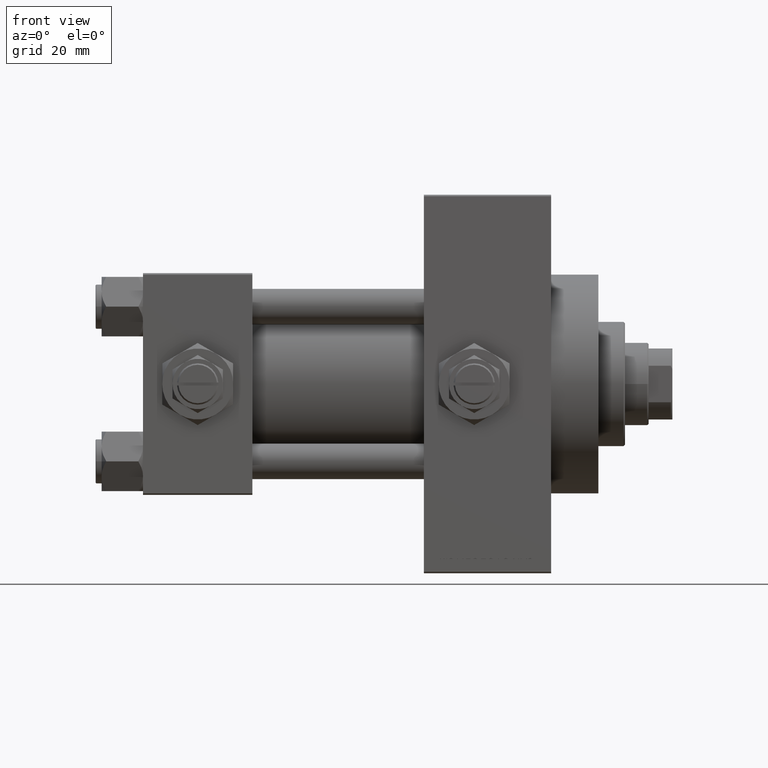
[diagram: clean part render]
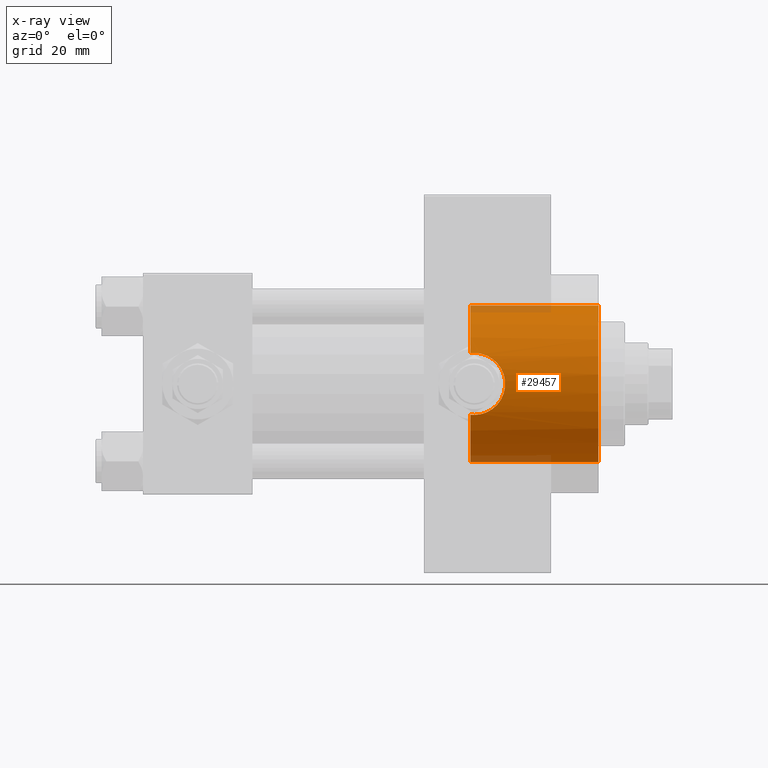
[diagram: x-ray — body ghosted, one internal face saturated and labeled with its STEP entity id]
A machine part, front view, then the same camera in x-ray: the body is ghosted and one INTERNAL B-rep face — a face not visible from any outside direction — is saturated and labeled: STEP entity #29457.
In plain terms, the highlighted cylindrical surface (partial cylindrical patch) has radius 26.5 mm, axis along (1, 0, 0).
Its self-contained STEP definition (entity closure, byte-faithful):
#143 = CARTESIAN_POINT ( 'NONE',  ( 122.4798633477534509, -26.49994595790488106, 0.6963870350870486892 ) ) ;
#269 = DIRECTION ( 'NONE',  ( 1.000000000000000000, -0.000000000000000000, -0.000000000000000000 ) ) ;
#394 = CARTESIAN_POINT ( 'NONE',  ( 115.3904700717597649, -24.57248644795726022, 9.922439993611771314 ) ) ;
#911 = DIRECTION ( 'NONE',  ( 0.000000000000000000, 0.000000000000000000, -1.000000000000000000 ) ) ;
#937 = B_SPLINE_CURVE_WITH_KNOTS ( 'NONE', 3,
 ( #40307, #32098, #2445, #28379 ),
 .UNSPECIFIED., .F., .F.,
 ( 4, 4 ),
 ( 0.03437190755806011910, 0.03561776921873218565 ),
 .UNSPECIFIED. ) ;
#1124 = CARTESIAN_POINT ( 'NONE',  ( 113.3786097457406044, -24.36915941385104745, -10.41231194222669387 ) ) ;
#1423 = AXIS2_PLACEMENT_3D ( 'NONE', #41955, #8835, #31244 ) ;
#2198 = CYLINDRICAL_SURFACE ( 'NONE', #45098, 26.50000000000000355 ) ;
#2273 = ORIENTED_EDGE ( 'NONE', *, *, #23823, .F. ) ;
#2445 = CARTESIAN_POINT ( 'NONE',  ( 111.1580741051582635, -24.35064928096444348, 10.45461191700782422 ) ) ;
#3768 = CARTESIAN_POINT ( 'NONE',  ( 110.7400000000000375, 0.000000000000000000, -26.50000000000000355 ) ) ;
#3889 = CARTESIAN_POINT ( 'NONE',  ( 117.2635990777562256, -24.90054338428140568, -9.068796382691635571 ) ) ;
#3926 = CARTESIAN_POINT ( 'NONE',  ( 110.7400000000000375, 0.000000000000000000, 0.000000000000000000 ) ) ;
#4134 = CARTESIAN_POINT ( 'NONE',  ( 121.8022638174866046, -26.23907308479208922, 3.723318718764354163 ) ) ;
#4387 = CARTESIAN_POINT ( 'NONE',  ( 122.1219222710722505, -26.36027543327034905, 2.738055544399104146 ) ) ;
#4631 = CARTESIAN_POINT ( 'NONE',  ( 120.8904987776702171, -25.91192981801191664, 5.559420023815757617 ) ) ;
#4632 = CIRCLE ( 'NONE', #1423, 26.50000000000000355 ) ;
#4873 = CARTESIAN_POINT ( 'NONE',  ( 114.3947302122627718, -24.45488967133337965, 10.20851256290626985 ) ) ;
#5613 = CIRCLE ( 'NONE', #28710, 26.50000000000000355 ) ;
#6427 = CARTESIAN_POINT ( 'NONE',  ( 110.7400000000000375, 0.000000000000000000, 0.000000000000000000 ) ) ;
#7950 = AXIS2_PLACEMENT_3D ( 'NONE', #31679, #35894, #39394 ) ;
#8089 = CARTESIAN_POINT ( 'NONE',  ( 111.1611364518797984, -24.35049096341792918, -10.45498279016081611 ) ) ;
#8135 = CARTESIAN_POINT ( 'NONE',  ( 113.3839948142214524, -24.36973996242157625, 10.41091756284553504 ) ) ;
#8388 = CARTESIAN_POINT ( 'NONE',  ( 118.4049404352972061, -25.16229795609818964, -8.322848467437539810 ) ) ;
#8786 = B_SPLINE_CURVE_WITH_KNOTS ( 'NONE', 3,
 ( #30744, #8089, #8826, #12061 ),
 .UNSPECIFIED., .F., .F.,
 ( 4, 4 ),
 ( 0.000000000000000000, 0.001255586767787659347 ),
 .UNSPECIFIED. ) ;
#8826 = CARTESIAN_POINT ( 'NONE',  ( 111.5811236364006049, -24.33967132070604222, -10.47999999999999865 ) ) ;
#8835 = DIRECTION ( 'NONE',  ( 1.000000000000000000, 0.000000000000000000, 0.000000000000000000 ) ) ;
#9539 = VERTEX_POINT ( 'NONE', #14431 ) ;
#10326 = CIRCLE ( 'NONE', #7950, 26.50000000000000355 ) ;
#10414 = FACE_OUTER_BOUND ( 'NONE', #40796, .T. ) ;
#11620 = CARTESIAN_POINT ( 'NONE',  ( 117.2636119660474066, -24.89625137302610369, 9.087734872939172703 ) ) ;
#11865 = CARTESIAN_POINT ( 'NONE',  ( 121.3916535229813576, -26.08830885934473542, 4.663043711798784408 ) ) ;
#12061 = CARTESIAN_POINT ( 'NONE',  ( 112.0000000000000000, -24.33967132070604222, -10.47999999999999865 ) ) ;
#12103 = CARTESIAN_POINT ( 'NONE',  ( 116.6659000583122605, -24.77500862834706652, 9.408993987884901600 ) ) ;
#12334 = VERTEX_POINT ( 'NONE', #38624 ) ;
#12599 = CARTESIAN_POINT ( 'NONE',  ( 118.9276451403627135, -25.30216499957183984, -7.893159106980520257 ) ) ;
#13301 = CARTESIAN_POINT ( 'NONE',  ( 110.7400000000000375, 3.245314017740486554E-15, 26.50000000000000355 ) ) ;
#14431 = CARTESIAN_POINT ( 'NONE',  ( 110.7400000000000375, -24.37226292324945831, -10.40398000767014430 ) ) ;
#15356 = CARTESIAN_POINT ( 'NONE',  ( 122.4114040688938587, -26.47265107862981992, 1.382412405478188999 ) ) ;
#15481 = LINE ( 'NONE', #3768, #38563 ) ;
#15606 = CARTESIAN_POINT ( 'NONE',  ( 112.6904960883777846, -24.33967132070604222, -10.48000000000000043 ) ) ;
#16337 = CARTESIAN_POINT ( 'NONE',  ( 119.6501220615578234, -25.51256335955728716, -7.170912732211446539 ) ) ;
#19086 = CARTESIAN_POINT ( 'NONE',  ( 114.7461877943153752, -24.48462605612510856, -10.13781324604279099 ) ) ;
#19337 = CARTESIAN_POINT ( 'NONE',  ( 121.0679913760332198, -25.97354752128884314, 5.264851845784580320 ) ) ;
#19371 = DIRECTION ( 'NONE',  ( 1.000000000000000000, 0.000000000000000000, 0.000000000000000000 ) ) ;
#19589 = CARTESIAN_POINT ( 'NONE',  ( 118.3864792908362773, -25.16230905708522414, 8.316254619809553716 ) ) ;
#19770 = VERTEX_POINT ( 'NONE', #27815 ) ;
#19831 = CARTESIAN_POINT ( 'NONE',  ( 122.4800680225664280, -26.50002690099941205, -0.3451042088078361547 ) ) ;
#20070 = CARTESIAN_POINT ( 'NONE',  ( 115.4024368383431352, -24.56844862672225815, -9.935854460437969493 ) ) ;
#20821 = VERTEX_POINT ( 'NONE', #48768 ) ;
#20924 = CARTESIAN_POINT ( 'NONE',  ( 154.0000000000000284, 3.245314017740486554E-15, 26.50000000000000355 ) ) ;
#20957 = VECTOR ( 'NONE', #47581, 1000.000000000000000 ) ;
#22142 = ORIENTED_EDGE ( 'NONE', *, *, #30964, .T. ) ;
#23082 = CARTESIAN_POINT ( 'NONE',  ( 112.0000000000000000, -24.33967132070604222, -10.47999999999999865 ) ) ;
#23333 = CARTESIAN_POINT ( 'NONE',  ( 112.0000000000000000, -24.33967132070604222, 10.48000000000000220 ) ) ;
#23584 = CARTESIAN_POINT ( 'NONE',  ( 122.2075249541714896, -26.39335609204158573, 2.399236127628239235 ) ) ;
#23818 = CARTESIAN_POINT ( 'NONE',  ( 120.3132647636415271, -25.71940794313460898, -6.390292897823913520 ) ) ;
#23823 = EDGE_CURVE ( 'NONE', #39311, #12334, #15481, .T. ) ;
#24158 = EDGE_CURVE ( 'NONE', #19770, #20821, #42004, .T. ) ;
#24998 = ORIENTED_EDGE ( 'NONE', *, *, #38327, .F. ) ;
#25398 = VERTEX_POINT ( 'NONE', #33534 ) ;
#25602 = DIRECTION ( 'NONE',  ( 1.000000000000000000, -0.000000000000000000, -0.000000000000000000 ) ) ;
#26217 = EDGE_CURVE ( 'NONE', #20821, #25398, #937, .T. ) ;
#26823 = CARTESIAN_POINT ( 'NONE',  ( 121.9191483855533704, -26.28308039691835418, 3.400110870430098853 ) ) ;
#27067 = CARTESIAN_POINT ( 'NONE',  ( 120.5155153844950462, -25.78569419426082021, -6.118106053452859960 ) ) ;
#27316 = CARTESIAN_POINT ( 'NONE',  ( 116.3489237122697091, -24.72318467201152714, -9.541179571695423078 ) ) ;
#27801 = CARTESIAN_POINT ( 'NONE',  ( 121.4057128516256370, -26.09263577897064224, -4.673612418766447618 ) ) ;
#27815 = CARTESIAN_POINT ( 'NONE',  ( 112.0000000000000000, -24.33967132070604222, -10.47999999999999865 ) ) ;
#28379 = CARTESIAN_POINT ( 'NONE',  ( 110.7400000000000375, -24.37226292324945476, 10.40398000767014786 ) ) ;
#28710 = AXIS2_PLACEMENT_3D ( 'NONE', #3926, #19371, #911 ) ;
#29457 = ADVANCED_FACE ( 'NONE', ( #10414 ), #2198, .F. ) ;
#30543 = CARTESIAN_POINT ( 'NONE',  ( 118.9147507852791676, -25.30155050139244111, 7.882476147205595751 ) ) ;
#30744 = CARTESIAN_POINT ( 'NONE',  ( 110.7400000000000375, -24.37226292324945831, -10.40398000767014430 ) ) ;
#30792 = CARTESIAN_POINT ( 'NONE',  ( 118.1110651716822275, -25.09360970262138224, 8.520611273842996880 ) ) ;
#30964 = EDGE_CURVE ( 'NONE', #45347, #12334, #4632, .T. ) ;
#31037 = CARTESIAN_POINT ( 'NONE',  ( 116.6580558779861150, -24.77960996754317335, -9.394203453174529983 ) ) ;
#31244 = DIRECTION ( 'NONE',  ( 0.000000000000000000, 0.000000000000000000, -1.000000000000000000 ) ) ;
#31528 = CARTESIAN_POINT ( 'NONE',  ( 114.7286532048194516, -24.48994387988090082, 10.12445329003761252 ) ) ;
#31679 = CARTESIAN_POINT ( 'NONE',  ( 110.7400000000000375, 0.000000000000000000, 0.000000000000000000 ) ) ;
#31897 = CARTESIAN_POINT ( 'NONE',  ( 110.7400000000000375, 3.245314017740486554E-15, 26.50000000000000355 ) ) ;
#31906 = CARTESIAN_POINT ( 'NONE',  ( 110.7400000000000375, 0.000000000000000000, -26.50000000000000355 ) ) ;
#32098 = CARTESIAN_POINT ( 'NONE',  ( 111.5796744023297293, -24.33967132070604222, 10.48000000000000220 ) ) ;
#32177 = VERTEX_POINT ( 'NONE', #13301 ) ;
#32362 = ORIENTED_EDGE ( 'NONE', *, *, #40740, .F. ) ;
#33534 = CARTESIAN_POINT ( 'NONE',  ( 110.7400000000000375, -24.37226292324945476, 10.40398000767014786 ) ) ;
#34273 = CARTESIAN_POINT ( 'NONE',  ( 119.8811664359166400, -25.58300917221409421, -6.916171625962136638 ) ) ;
#34514 = CARTESIAN_POINT ( 'NONE',  ( 119.8850942087585736, -25.58093385762820660, 6.936447548980011035 ) ) ;
#35009 = CARTESIAN_POINT ( 'NONE',  ( 115.7173844672076370, -24.61993612039164248, 9.804529592362731805 ) ) ;
#35894 = DIRECTION ( 'NONE',  ( 1.000000000000000000, 0.000000000000000000, 0.000000000000000000 ) ) ;
#37694 = ORIENTED_EDGE ( 'NONE', *, *, #48040, .T. ) ;
#38258 = CARTESIAN_POINT ( 'NONE',  ( 121.0816778311290136, -25.97633853132261450, -5.273786452924785983 ) ) ;
#38327 = EDGE_CURVE ( 'NONE', #32177, #25398, #10326, .T. ) ;
#38507 = CARTESIAN_POINT ( 'NONE',  ( 117.5577538920436780, -24.96463143003449403, -8.891425016462852327 ) ) ;
#38563 = VECTOR ( 'NONE', #269, 1000.000000000000000 ) ;
#38624 = CARTESIAN_POINT ( 'NONE',  ( 154.0000000000000284, 0.000000000000000000, -26.50000000000000355 ) ) ;
#38752 = CARTESIAN_POINT ( 'NONE',  ( 119.1663633815065140, -25.37171319999174912, 7.654298772871992895 ) ) ;
#38996 = CARTESIAN_POINT ( 'NONE',  ( 120.3165002292777785, -25.71874665637611201, 6.413821170274212946 ) ) ;
#39311 = VERTEX_POINT ( 'NONE', #31906 ) ;
#39394 = DIRECTION ( 'NONE',  ( 0.000000000000000000, 0.000000000000000000, -1.000000000000000000 ) ) ;
#39855 = LINE ( 'NONE', #31897, #20957 ) ;
#40307 = CARTESIAN_POINT ( 'NONE',  ( 112.0000000000000000, -24.33967132070604222, 10.48000000000000220 ) ) ;
#40491 = ORIENTED_EDGE ( 'NONE', *, *, #46002, .T. ) ;
#40659 = ORIENTED_EDGE ( 'NONE', *, *, #24158, .T. ) ;
#40740 = EDGE_CURVE ( 'NONE', #9539, #39311, #5613, .T. ) ;
#40796 = EDGE_LOOP ( 'NONE', ( #24998, #40491, #22142, #2273, #32362, #37694, #40659, #47155 ) ) ;
#41955 = CARTESIAN_POINT ( 'NONE',  ( 154.0000000000000284, 0.000000000000000000, 0.000000000000000000 ) ) ;
#42004 = B_SPLINE_CURVE_WITH_KNOTS ( 'NONE', 3,
 ( #23082, #15606, #1124, #19086, #20070, #27316, #31037, #3889, #38507, #8388, #12599, #16337, #34273, #23818, #27067, #38258, #27801, #45740, #45981, #42491, #42974, #46228, #19831, #143, #15356, #23584, #4387, #26823, #4134, #42240, #11865, #19337, #4631, #38996, #34514, #38752, #30543, #19589, #30792, #11620, #12103, #35009, #394, #31528, #4873, #8135, #46718, #23333 ),
 .UNSPECIFIED., .F., .F.,
 ( 4, 2, 2, 2, 2, 2, 2, 2, 2, 2, 2, 2, 2, 2, 2, 2, 2, 2, 2, 2, 2, 2, 2, 4 ),
 ( 0.001255586767787659347, 0.003325356817179700875, 0.005395126866571742404, 0.006430011891267743869, 0.007464896915963744467, 0.009534666965355782092, 0.01056955199005181305, 0.01160443701474784574, 0.01367420706413988857, 0.01574397711353192966, 0.01677886213822795194, 0.01781374716292397076, 0.01988351721231601532, 0.02091840223701203413, 0.02195328726170805295, 0.02298817228640406482, 0.02402305731110008363, 0.02609282736049212126, 0.02712771238518812619, 0.02816259740988413460, 0.03023236745927610630, 0.03126725248397210777, 0.03230213750866811617, 0.03437190755806011910 ),
 .UNSPECIFIED. ) ;
#42240 = CARTESIAN_POINT ( 'NONE',  ( 121.5385175848662982, -26.14168889184968947, 4.354785931857526826 ) ) ;
#42491 = CARTESIAN_POINT ( 'NONE',  ( 122.3421836049517140, -26.44572692659851754, -1.728475508984260278 ) ) ;
#42974 = CARTESIAN_POINT ( 'NONE',  ( 122.3935590552673744, -26.46591511510092687, -1.387412420731371165 ) ) ;
#45098 = AXIS2_PLACEMENT_3D ( 'NONE', #6427, #25602, #48754 ) ;
#45347 = VERTEX_POINT ( 'NONE', #20924 ) ;
#45740 = CARTESIAN_POINT ( 'NONE',  ( 121.9389570606566053, -26.28956209411557765, -3.395175965175880606 ) ) ;
#45981 = CARTESIAN_POINT ( 'NONE',  ( 122.1391112229688076, -26.36675217432884466, -2.738755341944245192 ) ) ;
#46002 = EDGE_CURVE ( 'NONE', #32177, #45347, #39855, .T. ) ;
#46228 = CARTESIAN_POINT ( 'NONE',  ( 122.4626037639855838, -26.49310609510639836, -0.6963515910539334053 ) ) ;
#46718 = CARTESIAN_POINT ( 'NONE',  ( 112.6982936874238703, -24.33967132070603867, 10.47999999999999865 ) ) ;
#47155 = ORIENTED_EDGE ( 'NONE', *, *, #26217, .T. ) ;
#47581 = DIRECTION ( 'NONE',  ( 1.000000000000000000, -0.000000000000000000, -0.000000000000000000 ) ) ;
#48040 = EDGE_CURVE ( 'NONE', #9539, #19770, #8786, .T. ) ;
#48754 = DIRECTION ( 'NONE',  ( 0.000000000000000000, 0.000000000000000000, -1.000000000000000000 ) ) ;
#48768 = CARTESIAN_POINT ( 'NONE',  ( 112.0000000000000000, -24.33967132070604222, 10.48000000000000220 ) ) ;